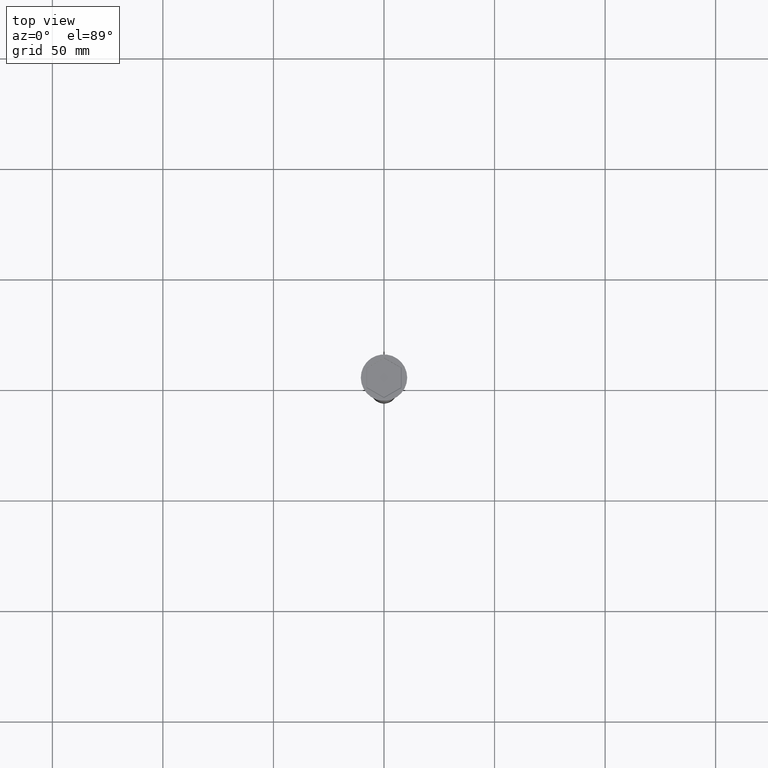
[diagram: clean part render]
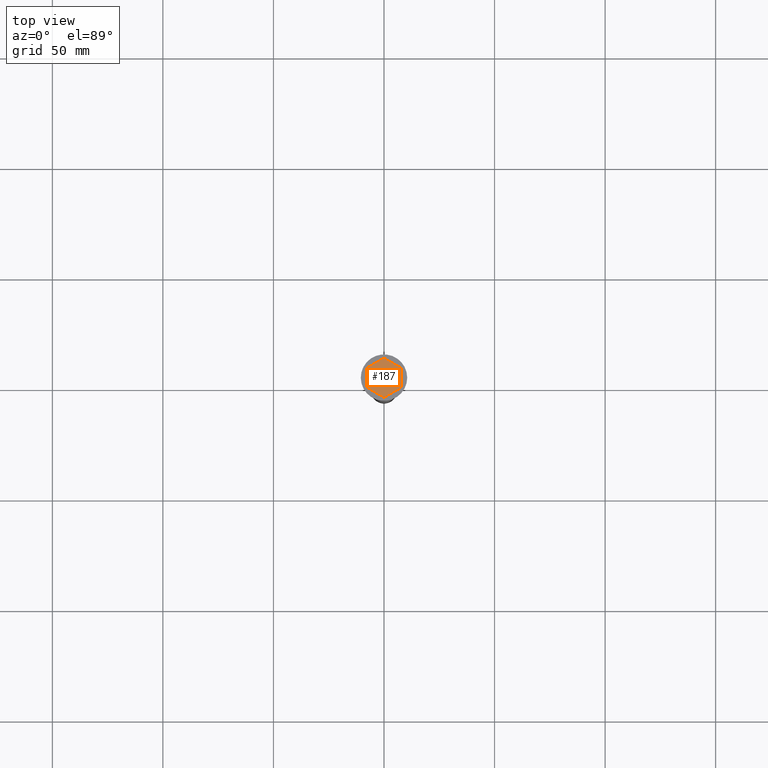
[diagram: same view with one face highlighted and labeled with its STEP entity id]
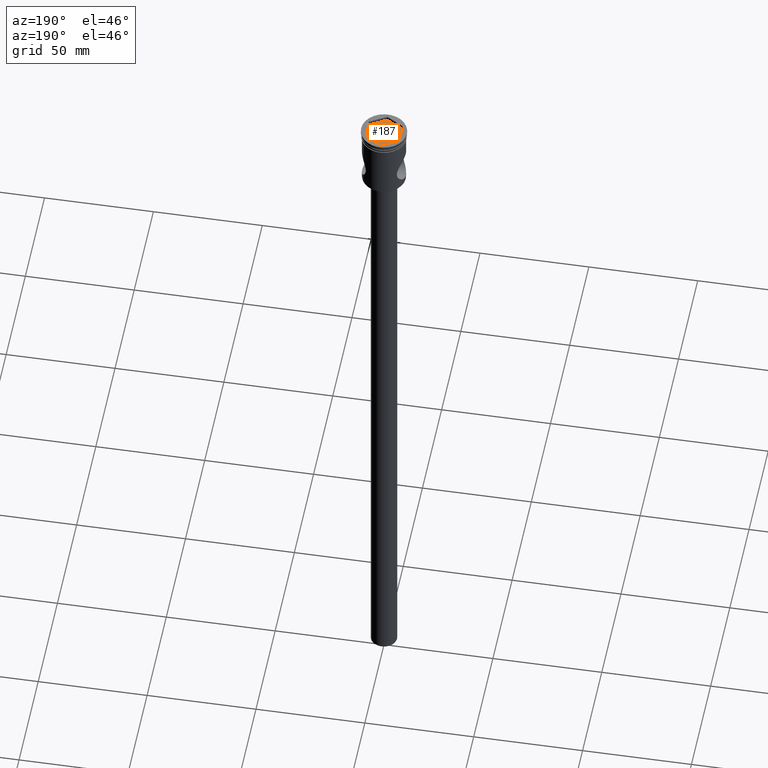
[diagram: same view with one face highlighted and labeled with its STEP entity id]
A machine part, top view. The second image highlights one B-rep face of the part: STEP entity #187.
A second angle (auxiliary view) of the same face is appended — the face is thin or edge-on in the first view.
In plain terms, the highlighted planar face has unit normal (-0, 0, 1).
Its self-contained STEP definition (entity closure, byte-faithful):
#19 = CARTESIAN_POINT ( 'NONE',  ( 7.699999999999999289, -4.445597072760119950, -2.000000000000000000 ) ) ;
#21 = VECTOR ( 'NONE', #500, 1000.000000000000114 ) ;
#26 = CARTESIAN_POINT ( 'NONE',  ( 7.700000000000000178, 4.445597072760118174, -2.000000000000000000 ) ) ;
#28 = LINE ( 'NONE', #742, #243 ) ;
#55 = CARTESIAN_POINT ( 'NONE',  ( 7.700000000000000178, 4.445597072760118174, -2.000000000000000000 ) ) ;
#169 = DIRECTION ( 'NONE',  ( -0.000000000000000000, 0.000000000000000000, 1.000000000000000000 ) ) ;
#182 = EDGE_CURVE ( 'NONE', #1250, #1014, #1352, .T. ) ;
#187 = ADVANCED_FACE ( 'NONE', ( #1118 ), #291, .T. ) ;
#219 = VERTEX_POINT ( 'NONE', #400 ) ;
#243 = VECTOR ( 'NONE', #1213, 1000.000000000000000 ) ;
#291 = PLANE ( 'NONE',  #1323 ) ;
#322 = LINE ( 'NONE', #1405, #832 ) ;
#400 = CARTESIAN_POINT ( 'NONE',  ( -4.336808689942017736E-16, -8.891194145520236347, -2.000000000000000000 ) ) ;
#500 = DIRECTION ( 'NONE',  ( -0.8660254037844385966, 0.4999999999999999445, 0.000000000000000000 ) ) ;
#536 = VECTOR ( 'NONE', #549, 1000.000000000000000 ) ;
#549 = DIRECTION ( 'NONE',  ( -0.8660254037844385966, -0.5000000000000001110, 0.000000000000000000 ) ) ;
#606 = CARTESIAN_POINT ( 'NONE',  ( -7.699999999999999289, 4.445597072760116397, -2.000000000000000000 ) ) ;
#629 = LINE ( 'NONE', #1436, #713 ) ;
#666 = ORIENTED_EDGE ( 'NONE', *, *, #1254, .T. ) ;
#713 = VECTOR ( 'NONE', #1309, 999.9999999999998863 ) ;
#728 = LINE ( 'NONE', #26, #21 ) ;
#742 = CARTESIAN_POINT ( 'NONE',  ( -7.699999999999999289, 4.445597072760116397, -2.000000000000000000 ) ) ;
#745 = CARTESIAN_POINT ( 'NONE',  ( 7.699999999999999289, -4.445597072760119950, -2.000000000000000000 ) ) ;
#792 = EDGE_CURVE ( 'NONE', #1266, #219, #629, .T. ) ;
#816 = LINE ( 'NONE', #1490, #536 ) ;
#832 = VECTOR ( 'NONE', #911, 1000.000000000000114 ) ;
#854 = CARTESIAN_POINT ( 'NONE',  ( 8.673617379884035472E-16, 8.891194145520236347, -2.000000000000000000 ) ) ;
#868 = EDGE_CURVE ( 'NONE', #1448, #1266, #28, .T. ) ;
#895 = ORIENTED_EDGE ( 'NONE', *, *, #792, .T. ) ;
#911 = DIRECTION ( 'NONE',  ( 0.8660254037844387076, 0.4999999999999997780, 0.000000000000000000 ) ) ;
#913 = ORIENTED_EDGE ( 'NONE', *, *, #1128, .T. ) ;
#970 = CARTESIAN_POINT ( 'NONE',  ( -7.700000000000000178, -4.445597072760118174, -2.000000000000000000 ) ) ;
#987 = ORIENTED_EDGE ( 'NONE', *, *, #1355, .T. ) ;
#1014 = VERTEX_POINT ( 'NONE', #55 ) ;
#1100 = DIRECTION ( 'NONE',  ( 1.000000000000000000, 0.000000000000000000, 0.000000000000000000 ) ) ;
#1118 = FACE_OUTER_BOUND ( 'NONE', #1376, .T. ) ;
#1128 = EDGE_CURVE ( 'NONE', #1290, #1448, #816, .T. ) ;
#1133 = ORIENTED_EDGE ( 'NONE', *, *, #182, .T. ) ;
#1137 = ORIENTED_EDGE ( 'NONE', *, *, #868, .T. ) ;
#1213 = DIRECTION ( 'NONE',  ( -9.755289602189348473E-17, -1.000000000000000000, 0.000000000000000000 ) ) ;
#1231 = CARTESIAN_POINT ( 'NONE',  ( 0.000000000000000000, 0.000000000000000000, -2.000000000000000000 ) ) ;
#1250 = VERTEX_POINT ( 'NONE', #19 ) ;
#1254 = EDGE_CURVE ( 'NONE', #1014, #1290, #728, .T. ) ;
#1266 = VERTEX_POINT ( 'NONE', #970 ) ;
#1290 = VERTEX_POINT ( 'NONE', #854 ) ;
#1301 = VECTOR ( 'NONE', #1463, 1000.000000000000000 ) ;
#1309 = DIRECTION ( 'NONE',  ( 0.8660254037844387076, -0.4999999999999999445, 0.000000000000000000 ) ) ;
#1323 = AXIS2_PLACEMENT_3D ( 'NONE', #1231, #169, #1100 ) ;
#1352 = LINE ( 'NONE', #745, #1301 ) ;
#1355 = EDGE_CURVE ( 'NONE', #219, #1250, #322, .T. ) ;
#1376 = EDGE_LOOP ( 'NONE', ( #666, #913, #1137, #895, #987, #1133 ) ) ;
#1405 = CARTESIAN_POINT ( 'NONE',  ( -4.336808689942017736E-16, -8.891194145520236347, -2.000000000000000000 ) ) ;
#1436 = CARTESIAN_POINT ( 'NONE',  ( -7.700000000000000178, -4.445597072760118174, -2.000000000000000000 ) ) ;
#1448 = VERTEX_POINT ( 'NONE', #606 ) ;
#1463 = DIRECTION ( 'NONE',  ( 9.755289602189344775E-17, 1.000000000000000000, 0.000000000000000000 ) ) ;
#1490 = CARTESIAN_POINT ( 'NONE',  ( 8.673617379884035472E-16, 8.891194145520236347, -2.000000000000000000 ) ) ;